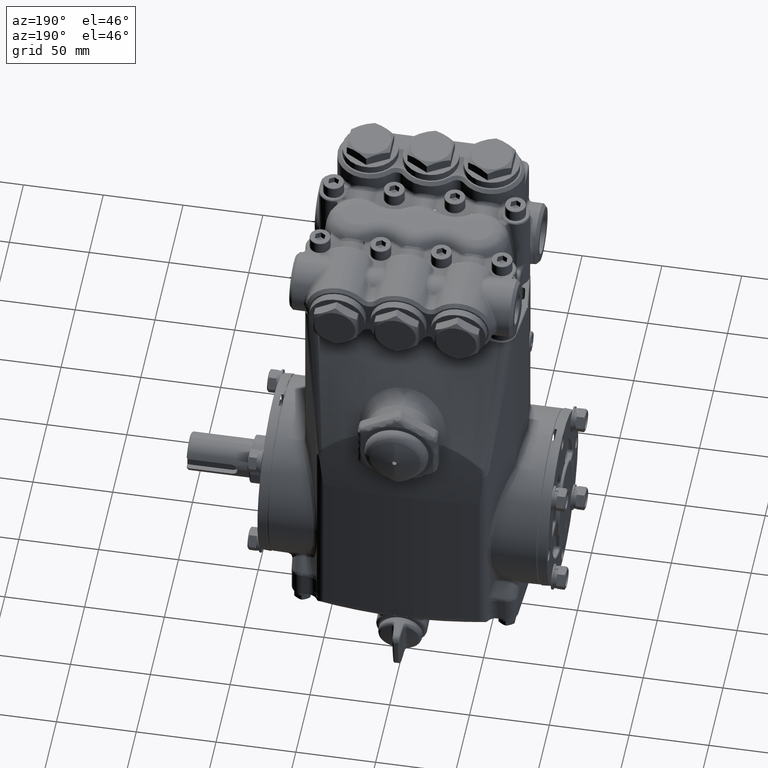
[diagram: clean part render]
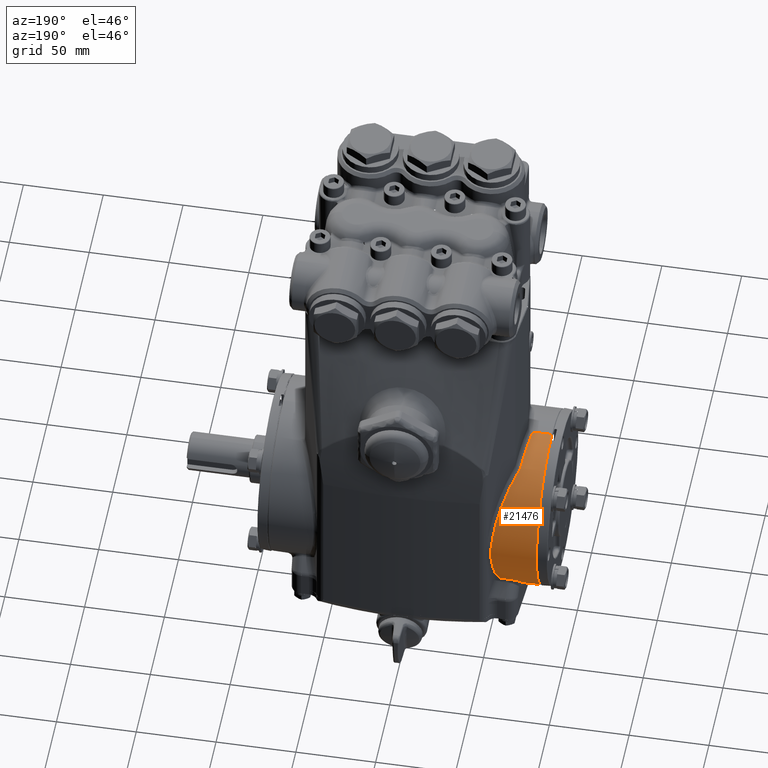
[diagram: same view with one face highlighted and labeled with its STEP entity id]
A machine part, auxiliary view. The second image highlights one B-rep face of the part: STEP entity #21476.
In plain terms, the highlighted cylindrical surface (partial cylindrical patch) has radius 55 mm, axis along (-1, -0, -0).
Its self-contained STEP definition (entity closure, byte-faithful):
#1728 = ORIENTED_EDGE ( 'NONE', *, *, #79761, .T. ) ;
#2947 = CARTESIAN_POINT ( 'NONE',  ( -2.186613352208861993, 2.157628379374275429, 0.1885892275417958008 ) ) ;
#3377 = EDGE_CURVE ( 'NONE', #10515, #93076, #52742, .T. ) ;
#3612 = CARTESIAN_POINT ( 'NONE',  ( -2.347859870804390070, 1.842123431487330043, -1.138139405278453919 ) ) ;
#4577 = CARTESIAN_POINT ( 'NONE',  ( -2.224920720426668552, 2.093148554814857842, 0.5545164605268523283 ) ) ;
#5248 = CYLINDRICAL_SURFACE ( 'NONE', #34027, 2.165354330708661568 ) ;
#5401 = CARTESIAN_POINT ( 'NONE',  ( -2.202600983985220306, 2.135186560717966309, -0.3721468128045957169 ) ) ;
#6176 = CARTESIAN_POINT ( 'NONE',  ( -2.818533017741007729, 1.746310629392774150, -1.280332060359319568 ) ) ;
#6796 = CARTESIAN_POINT ( 'NONE',  ( -2.903593194520122100, 1.652876374660746661, -1.398892119377336041 ) ) ;
#8334 = CARTESIAN_POINT ( 'NONE',  ( -3.000905191768266089, 0.01046765692728673057, -2.165329029426523277 ) ) ;
#8646 = CARTESIAN_POINT ( 'NONE',  ( -2.895476968579367760, 1.668070233648332623, -1.380739355267364132 ) ) ;
#9548 = CARTESIAN_POINT ( 'NONE',  ( -2.834916132250361986, 0.007256158854866113193, 2.165354330708664232 ) ) ;
#10515 = VERTEX_POINT ( 'NONE', #114445 ) ;
#12366 = CARTESIAN_POINT ( 'NONE',  ( -2.214111242110439193, 2.117192476782161936, -0.4637572061125144751 ) ) ;
#12558 =( BOUNDED_CURVE ( )  B_SPLINE_CURVE ( 3, ( #44749, #121321, #91264, #4577 ),
 .UNSPECIFIED., .F., .F. ) 
 B_SPLINE_CURVE_WITH_KNOTS ( ( 4, 4 ),
 ( 2.070085784874226231, 2.882621878166205853 ),
 .UNSPECIFIED. ) 
 CURVE ( )  GEOMETRIC_REPRESENTATION_ITEM ( )  RATIONAL_B_SPLINE_CURVE ( ( 1.000000000000000000, 0.9457346828002772821, 0.9457346828002772821, 1.000000000000000000 ) ) 
 REPRESENTATION_ITEM ( '' )  );
#12738 = CARTESIAN_POINT ( 'NONE',  ( -2.699836573358002312, 1.036775677710985333, 1.901014353345519270 ) ) ;
#12820 = DIRECTION ( 'NONE',  ( 1.000000000000000000, -0.000000000000000000, -0.000000000000000000 ) ) ;
#14285 = CARTESIAN_POINT ( 'NONE',  ( -2.374685763242076586, 1.829236654641229309, -1.158732504851491818 ) ) ;
#14850 = CARTESIAN_POINT ( 'NONE',  ( -2.214137029036238324, 2.117135117970423863, 0.4639737199988274163 ) ) ;
#14917 = CARTESIAN_POINT ( 'NONE',  ( -2.330330887586870237, 1.858680825696717331, -1.110948456377815363 ) ) ;
#15386 = EDGE_CURVE ( 'NONE', #38592, #10515, #94194, .T. ) ;
#15525 = CARTESIAN_POINT ( 'NONE',  ( -2.360136675470979828, 1.835108037747382737, -1.149413945969933071 ) ) ;
#16557 = CARTESIAN_POINT ( 'NONE',  ( -3.307086614166640182, 2.651794250122221246E-16, 2.165354330708661568 ) ) ;
#16906 = B_SPLINE_CURVE_WITH_KNOTS ( 'NONE', 3,
 ( #63906, #14917, #102215, #80874, #3612, #51978, #15525, #33124, #14285, #101581, #41908, #91534, #62664, #92173 ),
 .UNSPECIFIED., .F., .F.,
 ( 4, 2, 2, 2, 2, 2, 4 ),
 ( 0.000000000000000000, 0.0009293632568907302582, 0.001394044885336096200, 0.001858726513781462251, 0.002323408142226828302, 0.002788089770672194136, 0.003717453027562906288 ),
 .UNSPECIFIED. ) ;
#18087 = CARTESIAN_POINT ( 'NONE',  ( -2.875645456564244640, 1.696808674284081775, -1.345404253422435081 ) ) ;
#18388 = CARTESIAN_POINT ( 'NONE',  ( -2.834471511779911523, 0.01451231771058760812, 2.165317858263889228 ) ) ;
#18510 = CARTESIAN_POINT ( 'NONE',  ( -2.920714650841377935, 1.587600093807528978, -1.472509870819574740 ) ) ;
#18612 = EDGE_CURVE ( 'NONE', #54099, #80200, #122142, .T. ) ;
#18712 = CARTESIAN_POINT ( 'NONE',  ( -2.792530616634989471, 1.761970238058271576, -1.258688681146406863 ) ) ;
#18894 = VERTEX_POINT ( 'NONE', #105210 ) ;
#19025 = CARTESIAN_POINT ( 'NONE',  ( -3.001247000493426853, 0.003491088892603810574, -2.165354330708661568 ) ) ;
#19185 = CARTESIAN_POINT ( 'NONE',  ( -2.964687734594000812, 0.9588978268965991925, -1.984134134183584752 ) ) ;
#20750 = EDGE_CURVE ( 'NONE', #21798, #103197, #48703, .T. ) ;
#21476 = ADVANCED_FACE ( 'NONE', ( #98278 ), #5248, .T. ) ;
#21626 = EDGE_CURVE ( 'NONE', #68475, #18894, #117615, .T. ) ;
#21798 = VERTEX_POINT ( 'NONE', #109358 ) ;
#21804 = CARTESIAN_POINT ( 'NONE',  ( -2.180526785268474210, 2.165375858866640968, -0.02138746709008351038 ) ) ;
#22390 = ORIENTED_EDGE ( 'NONE', *, *, #18612, .T. ) ;
#23756 = CARTESIAN_POINT ( 'NONE',  ( 19685.03937007874265, 1.820616516430447085, -1.172226461746799009 ) ) ;
#25473 = EDGE_LOOP ( 'NONE', ( #93116, #67102, #108816, #51892, #66453, #74749, #41868, #33772, #22390, #39183, #121841, #38680, #41057, #1728, #119276 ) ) ;
#25853 = CARTESIAN_POINT ( 'NONE',  ( -2.996285488333642721, 0.1040549884975184580, -2.163356751746155382 ) ) ;
#26271 = CARTESIAN_POINT ( 'NONE',  ( -2.907126062173174486, 1.645029633680164860, -1.408113838877049329 ) ) ;
#26461 = CARTESIAN_POINT ( 'NONE',  ( -2.995616580941062423, 0.2435827851895652763, -2.152113865190802056 ) ) ;
#26888 = CARTESIAN_POINT ( 'NONE',  ( -2.557632326301072734, 1.820616516430408671, -1.172226461746761927 ) ) ;
#26984 = B_SPLINE_CURVE_WITH_KNOTS ( 'NONE', 3,
 ( #110632, #33383, #81130, #101237, #93657, #26461, #74203, #25853, #120629, #54118 ),
 .UNSPECIFIED., .F., .F.,
 ( 4, 2, 2, 2, 4 ),
 ( 0.000000000000000000, 0.003546287326658007465, 0.007092574653316014929, 0.01063886197997401979, 0.01418514930663202118 ),
 .UNSPECIFIED. ) ;
#27595 = VERTEX_POINT ( 'NONE', #41707 ) ;
#27810 = CARTESIAN_POINT ( 'NONE',  ( -2.834916132250326903, -8.553836053367910872E-13, 2.165354330708661568 ) ) ;
#28122 = CARTESIAN_POINT ( 'NONE',  ( -2.582376196092895704, 1.819240064059689299, -1.174372134108272236 ) ) ;
#29575 = EDGE_CURVE ( 'NONE', #27595, #21798, #52027, .T. ) ;
#30963 = CARTESIAN_POINT ( 'NONE',  ( -2.712053289720472993, 1.003180171440650970, 1.919059759503227269 ) ) ;
#31936 = DIRECTION ( 'NONE',  ( -1.000000000000000000, -0.000000000000000000, -0.000000000000000000 ) ) ;
#31985 = VECTOR ( 'NONE', #40178, 39.37007874015748143 ) ;
#32186 = CARTESIAN_POINT ( 'NONE',  ( -2.707236426691661535, 1.020315910558582173, 1.909991185221792120 ) ) ;
#32432 = CARTESIAN_POINT ( 'NONE',  ( -2.224920720426668552, 2.093148554814857842, 0.5545164605268523283 ) ) ;
#33124 = CARTESIAN_POINT ( 'NONE',  ( -2.369612889744431516, 1.831046827813259670, -1.155872589756385294 ) ) ;
#33383 = CARTESIAN_POINT ( 'NONE',  ( -2.995487386928054274, 0.5185418274592423771, -2.102870380195392297 ) ) ;
#33673 = CARTESIAN_POINT ( 'NONE',  ( -2.189920097867191995, 2.153294297498582033, -0.2329633583571052435 ) ) ;
#33772 = ORIENTED_EDGE ( 'NONE', *, *, #55758, .T. ) ;
#34027 = AXIS2_PLACEMENT_3D ( 'NONE', #51138, #52362, #61191 ) ;
#35192 = CARTESIAN_POINT ( 'NONE',  ( -2.714262431508347451, 0.9853388122601114407, 1.928177067225048225 ) ) ;
#35666 = CARTESIAN_POINT ( 'NONE',  ( -2.753963914065131302, 1.780296878712746667, -1.232619823086091637 ) ) ;
#38592 = VERTEX_POINT ( 'NONE', #60253 ) ;
#38622 = VECTOR ( 'NONE', #106156, 39.37007874015748143 ) ;
#38680 = ORIENTED_EDGE ( 'NONE', *, *, #29575, .T. ) ;
#39183 = ORIENTED_EDGE ( 'NONE', *, *, #49914, .T. ) ;
#39806 = EDGE_CURVE ( 'NONE', #38592, #106260, #104922, .T. ) ;
#40178 = DIRECTION ( 'NONE',  ( -1.000000000000000000, -0.000000000000000000, -0.000000000000000000 ) ) ;
#40197 = CARTESIAN_POINT ( 'NONE',  ( -2.282229834916867706, 1.965673774210779490, -0.9296893196579598673 ) ) ;
#41057 = ORIENTED_EDGE ( 'NONE', *, *, #20750, .T. ) ;
#41527 = CARTESIAN_POINT ( 'NONE',  ( -2.224920720426668996, 2.093148554814857842, -0.5545164605268522173 ) ) ;
#41707 = CARTESIAN_POINT ( 'NONE',  ( -2.432232454864653448, 1.820616516430446419, -1.172226461746799897 ) ) ;
#41868 = ORIENTED_EDGE ( 'NONE', *, *, #47637, .T. ) ;
#41908 = CARTESIAN_POINT ( 'NONE',  ( -2.390773553364281323, 1.824823179282988539, -1.165668736654657867 ) ) ;
#44469 = CARTESIAN_POINT ( 'NONE',  ( -2.783320116348022122, 1.766820788075095461, -1.251865423870408778 ) ) ;
#44749 = CARTESIAN_POINT ( 'NONE',  ( -2.699836573358002312, 1.036775677710985333, 1.901014353345519270 ) ) ;
#47247 = CARTESIAN_POINT ( 'NONE',  ( -2.833573044147181808, 0.02176847656630910219, 2.165244907844546152 ) ) ;
#47431 = VERTEX_POINT ( 'NONE', #92000 ) ;
#47637 = EDGE_CURVE ( 'NONE', #93076, #90753, #55881, .T. ) ;
#48703 = B_SPLINE_CURVE_WITH_KNOTS ( 'NONE', 3,
 ( #84680, #26888, #28122, #66464, #57015, #111658, #114115, #94713, #64598, #35666, #92869, #44469, #18712, #112906, #6176, #102899, #104130, #65218, #18087, #121051, #8646, #6796, #26271, #112293, #104752, #94102 ),
 .UNSPECIFIED., .F., .F.,
 ( 4, 2, 2, 2, 2, 2, 2, 2, 2, 2, 2, 2, 4 ),
 ( 0.000000000000000000, 0.001891821109857257316, 0.002837731664785884782, 0.003783642219714512030, 0.005675463329571802523, 0.006621373884500461431, 0.007567284439429121205, 0.008513194994357780113, 0.009459105549286438153, 0.01135092665914376811, 0.01229683721407244003, 0.01324274776900111195, 0.01513456887885848180 ),
 .UNSPECIFIED. ) ;
#49914 = EDGE_CURVE ( 'NONE', #80200, #107800, #63198, .T. ) ;
#51129 = DIRECTION ( 'NONE',  ( 0.000000000000000000, 0.000000000000000000, -1.000000000000000000 ) ) ;
#51138 = CARTESIAN_POINT ( 'NONE',  ( 19685.03937007874265, 0.000000000000000000, 0.000000000000000000 ) ) ;
#51892 = ORIENTED_EDGE ( 'NONE', *, *, #39806, .F. ) ;
#51911 = CARTESIAN_POINT ( 'NONE',  ( -2.186450764309912476, 2.157841920206465591, -0.1862736558526659481 ) ) ;
#51978 = CARTESIAN_POINT ( 'NONE',  ( -2.355791910466821015, 1.837328447188444569, -1.145863962184987095 ) ) ;
#52027 = LINE ( 'NONE', #23756, #100571 ) ;
#52362 = DIRECTION ( 'NONE',  ( -1.000000000000000000, -0.000000000000000000, -0.000000000000000000 ) ) ;
#52525 = CARTESIAN_POINT ( 'NONE',  ( -2.202693561820952439, 2.135036624589259802, 0.3728106239869881100 ) ) ;
#52742 =( BOUNDED_CURVE ( )  B_SPLINE_CURVE ( 3, ( #121199, #85437, #111188, #35192 ),
 .UNSPECIFIED., .F., .T. ) 
 B_SPLINE_CURVE_WITH_KNOTS ( ( 4, 4 ),
 ( 1.580849574406080205, 2.043221746822086349 ),
 .UNSPECIFIED. ) 
 CURVE ( )  GEOMETRIC_REPRESENTATION_ITEM ( )  RATIONAL_B_SPLINE_CURVE ( ( 1.000000000000000000, 0.9822635394635154116, 0.9822635394635154116, 1.000000000000000000 ) ) 
 REPRESENTATION_ITEM ( '' )  );
#54099 = VERTEX_POINT ( 'NONE', #109772 ) ;
#54118 = CARTESIAN_POINT ( 'NONE',  ( -3.000905191768266089, 0.01046765692728673057, -2.165329029426523277 ) ) ;
#55758 = EDGE_CURVE ( 'NONE', #90753, #54099, #12558, .T. ) ;
#55881 = B_SPLINE_CURVE_WITH_KNOTS ( 'NONE', 3,
 ( #60488, #30963, #32186, #12738 ),
 .UNSPECIFIED., .F., .F.,
 ( 4, 4 ),
 ( 3.469446951953614189E-18, 0.001522235697223477992 ),
 .UNSPECIFIED. ) ;
#57015 = CARTESIAN_POINT ( 'NONE',  ( -2.630949183802644420, 1.813465316359295310, -1.183265352077683241 ) ) ;
#60253 = CARTESIAN_POINT ( 'NONE',  ( -2.834916132250326903, -8.553836053367910872E-13, 2.165354330708661568 ) ) ;
#60488 = CARTESIAN_POINT ( 'NONE',  ( -2.714262431508347451, 0.9853388122601114407, 1.928177067225048225 ) ) ;
#60865 = EDGE_CURVE ( 'NONE', #47431, #106260, #92014, .T. ) ;
#61191 = DIRECTION ( 'NONE',  ( 0.000000000000000000, 0.000000000000000000, 1.000000000000000000 ) ) ;
#61607 = CARTESIAN_POINT ( 'NONE',  ( -2.992327056910538907, 0.5637264376050651338, -2.090686939994570004 ) ) ;
#62664 = CARTESIAN_POINT ( 'NONE',  ( -2.420029408679309491, 1.820616516430447751, -1.172226461746846082 ) ) ;
#63198 =( BOUNDED_CURVE ( )  B_SPLINE_CURVE ( 3, ( #67921, #116829, #40197, #116212 ),
 .UNSPECIFIED., .F., .T. ) 
 B_SPLINE_CURVE_WITH_KNOTS ( ( 4, 4 ),
 ( 3.400563429013380379, 3.674831595706583798 ),
 .UNSPECIFIED. ) 
 CURVE ( )  GEOMETRIC_REPRESENTATION_ITEM ( )  RATIONAL_B_SPLINE_CURVE ( ( 1.000000000000000000, 0.9937412320302076996, 0.9937412320302076996, 1.000000000000000000 ) ) 
 REPRESENTATION_ITEM ( '' )  );
#63906 = CARTESIAN_POINT ( 'NONE',  ( -2.327612382700216642, 1.864727696549315805, -1.100704317807756016 ) ) ;
#63962 = AXIS2_PLACEMENT_3D ( 'NONE', #81887, #12820, #51129 ) ;
#64598 = CARTESIAN_POINT ( 'NONE',  ( -2.722920638537827731, 1.792222520854177104, -1.215275574371438516 ) ) ;
#65115 = EDGE_CURVE ( 'NONE', #107800, #27595, #16906, .T. ) ;
#65218 = CARTESIAN_POINT ( 'NONE',  ( -2.863472108935826377, 1.710160163005832956, -1.328358890287677729 ) ) ;
#66453 = ORIENTED_EDGE ( 'NONE', *, *, #15386, .T. ) ;
#66464 = CARTESIAN_POINT ( 'NONE',  ( -2.618882594685502774, 1.815162649067177503, -1.180656669223874244 ) ) ;
#67102 = ORIENTED_EDGE ( 'NONE', *, *, #82902, .T. ) ;
#67921 = CARTESIAN_POINT ( 'NONE',  ( -2.224920720426668996, 2.093148554814857842, -0.5545164605268522173 ) ) ;
#68475 = VERTEX_POINT ( 'NONE', #80605 ) ;
#69533 = CARTESIAN_POINT ( 'NONE',  ( -2.180581225541741830, 2.165308281435589066, 0.04901070734122809497 ) ) ;
#72576 =( BOUNDED_CURVE ( )  B_SPLINE_CURVE ( 3, ( #86389, #115826, #19185, #95192 ),
 .UNSPECIFIED., .F., .F. ) 
 B_SPLINE_CURVE_WITH_KNOTS ( ( 4, 4 ),
 ( 3.889398702551730924, 4.449015564267806866 ),
 .UNSPECIFIED. ) 
 CURVE ( )  GEOMETRIC_REPRESENTATION_ITEM ( )  RATIONAL_B_SPLINE_CURVE ( ( 1.000000000000000000, 0.9740722412601059421, 0.9740722412601059421, 1.000000000000000000 ) ) 
 REPRESENTATION_ITEM ( '' )  );
#72828 = CARTESIAN_POINT ( 'NONE',  ( -2.327612382700216642, 1.864727696549315805, -1.100704317807756016 ) ) ;
#74203 = CARTESIAN_POINT ( 'NONE',  ( -2.995192722002654406, 0.1972203405201242987, -2.156859757434875569 ) ) ;
#74749 = ORIENTED_EDGE ( 'NONE', *, *, #3377, .T. ) ;
#76191 = CARTESIAN_POINT ( 'NONE',  ( -3.001247000493425965, -5.474055705097304527E-14, -2.165354330708661568 ) ) ;
#78136 = VERTEX_POINT ( 'NONE', #61607 ) ;
#78959 = CARTESIAN_POINT ( 'NONE',  ( -2.182914079590751122, 2.162387231284902622, -0.1157406669298135377 ) ) ;
#79761 = EDGE_CURVE ( 'NONE', #103197, #78136, #72576, .T. ) ;
#80200 = VERTEX_POINT ( 'NONE', #41527 ) ;
#80605 = CARTESIAN_POINT ( 'NONE',  ( -3.000905191768266089, 0.01046765692728673057, -2.165329029426523277 ) ) ;
#80874 = CARTESIAN_POINT ( 'NONE',  ( -2.344246016133761046, 1.844723699014530816, -1.133922719474339980 ) ) ;
#81130 = CARTESIAN_POINT ( 'NONE',  ( -2.996615589479274977, 0.4731062516763475112, -2.113551596670201427 ) ) ;
#81419 = CARTESIAN_POINT ( 'NONE',  ( -2.180817177939173401, 2.165017101369969499, -0.04491568208714365185 ) ) ;
#81495 = CARTESIAN_POINT ( 'NONE',  ( -2.699836573358002312, 1.036775677710985333, 1.901014353345519270 ) ) ;
#81887 = CARTESIAN_POINT ( 'NONE',  ( -3.307086614166640182, 0.000000000000000000, 0.000000000000000000 ) ) ;
#82365 = CARTESIAN_POINT ( 'NONE',  ( -2.714262431508347451, 0.9853388122601114407, 1.928177067225048225 ) ) ;
#82902 = EDGE_CURVE ( 'NONE', #18894, #47431, #116191, .T. ) ;
#84680 = CARTESIAN_POINT ( 'NONE',  ( -2.532464889193351887, 1.820616516430446863, -1.172226461746799009 ) ) ;
#85437 = CARTESIAN_POINT ( 'NONE',  ( -2.791879429211051811, 0.3584923408687987201, 2.161859625411683528 ) ) ;
#86389 = CARTESIAN_POINT ( 'NONE',  ( -2.920714650841377935, 1.587600093807528978, -1.472509870819574740 ) ) ;
#88140 = EDGE_CURVE ( 'NONE', #78136, #68475, #26984, .T. ) ;
#90235 = CARTESIAN_POINT ( 'NONE',  ( -2.190071999432462224, 2.153086051259655243, 0.2348026329366685871 ) ) ;
#90753 = VERTEX_POINT ( 'NONE', #81495 ) ;
#91264 = CARTESIAN_POINT ( 'NONE',  ( -2.294367569176432475, 1.938675363477264213, 1.137610670027403570 ) ) ;
#91534 = CARTESIAN_POINT ( 'NONE',  ( -2.408079295826049737, 1.821645022111501921, -1.170634117865167800 ) ) ;
#92000 = CARTESIAN_POINT ( 'NONE',  ( -3.307086614166640182, 0.000000000000000000, -2.165354330708661568 ) ) ;
#92014 = CIRCLE ( 'NONE', #63962, 2.165354330708661568 ) ;
#92173 = CARTESIAN_POINT ( 'NONE',  ( -2.432232454864653448, 1.820616516430446419, -1.172226461746799897 ) ) ;
#92869 = CARTESIAN_POINT ( 'NONE',  ( -2.764059797206227298, 1.775976632164363300, -1.238842095935893672 ) ) ;
#93076 = VERTEX_POINT ( 'NONE', #82365 ) ;
#93116 = ORIENTED_EDGE ( 'NONE', *, *, #21626, .T. ) ;
#93657 = CARTESIAN_POINT ( 'NONE',  ( -2.996620088869630827, 0.3358538298913014142, -2.139656249712679870 ) ) ;
#94102 = CARTESIAN_POINT ( 'NONE',  ( -2.920714650841377935, 1.587600093807528978, -1.472509870819574740 ) ) ;
#94194 = B_SPLINE_CURVE_WITH_KNOTS ( 'NONE', 3,
 ( #27810, #9548, #18388, #47247 ),
 .UNSPECIFIED., .F., .F.,
 ( 4, 4 ),
 ( 0.0005529193047624394834, 0.001105838609568417490 ),
 .UNSPECIFIED. ) ;
#94713 = CARTESIAN_POINT ( 'NONE',  ( -2.701115141882145299, 1.798870862651447133, -1.205370664415323700 ) ) ;
#95192 = CARTESIAN_POINT ( 'NONE',  ( -2.992327056910538907, 0.5637264376050651338, -2.090686939994570004 ) ) ;
#96150 = CARTESIAN_POINT ( 'NONE',  ( 19685.03937007874265, 2.651794250122221246E-16, -2.165354330708661568 ) ) ;
#96880 = CARTESIAN_POINT ( 'NONE',  ( -3.001132935298741256, 0.006984045161048439698, -2.165345869940062062 ) ) ;
#98278 = FACE_OUTER_BOUND ( 'NONE', #25473, .T. ) ;
#100571 = VECTOR ( 'NONE', #31936, 39.37007874015748143 ) ;
#101237 = CARTESIAN_POINT ( 'NONE',  ( -2.997196904585581745, 0.3817623974804327247, -2.131944499519720981 ) ) ;
#101581 = CARTESIAN_POINT ( 'NONE',  ( -2.385249461896747025, 1.826132136985539889, -1.163618998964428775 ) ) ;
#102215 = CARTESIAN_POINT ( 'NONE',  ( -2.334813571937218946, 1.852837202116557558, -1.120652135000211214 ) ) ;
#102899 = CARTESIAN_POINT ( 'NONE',  ( -2.834510793166090892, 1.734923225546766368, -1.295720803480591155 ) ) ;
#103197 = VERTEX_POINT ( 'NONE', #18510 ) ;
#104130 = CARTESIAN_POINT ( 'NONE',  ( -2.842123480178768258, 1.728912408571944503, -1.303736053716292531 ) ) ;
#104752 = CARTESIAN_POINT ( 'NONE',  ( -2.919519453647200891, 1.604688346922567899, -1.454086013169413993 ) ) ;
#104922 = LINE ( 'NONE', #116160, #38622 ) ;
#105210 = CARTESIAN_POINT ( 'NONE',  ( -3.001247000493425965, -5.474055705097304527E-14, -2.165354330708661568 ) ) ;
#106156 = DIRECTION ( 'NONE',  ( -1.000000000000000000, -0.000000000000000000, -0.000000000000000000 ) ) ;
#106260 = VERTEX_POINT ( 'NONE', #16557 ) ;
#107800 = VERTEX_POINT ( 'NONE', #72828 ) ;
#108441 = CARTESIAN_POINT ( 'NONE',  ( -2.224920720426668996, 2.093148554814857842, -0.5545164605268522173 ) ) ;
#108816 = ORIENTED_EDGE ( 'NONE', *, *, #60865, .T. ) ;
#109061 = CARTESIAN_POINT ( 'NONE',  ( -2.181865193312993334, 2.163739559798199430, 0.09569345636149928502 ) ) ;
#109358 = CARTESIAN_POINT ( 'NONE',  ( -2.532464889193351887, 1.820616516430446863, -1.172226461746799009 ) ) ;
#109655 = CARTESIAN_POINT ( 'NONE',  ( -2.182010245614104615, 2.163523631875809095, -0.09209756802802643305 ) ) ;
#109772 = CARTESIAN_POINT ( 'NONE',  ( -2.224920720426668552, 2.093148554814857842, 0.5545164605268523283 ) ) ;
#110632 = CARTESIAN_POINT ( 'NONE',  ( -2.992327056910538907, 0.5637264376050651338, -2.090686939994570004 ) ) ;
#111188 = CARTESIAN_POINT ( 'NONE',  ( -2.751391105441370222, 0.6854820936121004404, 2.081410122437167054 ) ) ;
#111658 = CARTESIAN_POINT ( 'NONE',  ( -2.654874561816855660, 1.809369689380805113, -1.189518673336169563 ) ) ;
#112293 = CARTESIAN_POINT ( 'NONE',  ( -2.915934412661236319, 1.621165426257023201, -1.435678530815410969 ) ) ;
#112906 = CARTESIAN_POINT ( 'NONE',  ( -2.810137086962422259, 1.751715151741702448, -1.272921970510207723 ) ) ;
#114115 = CARTESIAN_POINT ( 'NONE',  ( -2.666696451043287563, 1.806973173080999251, -1.193160169334844589 ) ) ;
#114445 = CARTESIAN_POINT ( 'NONE',  ( -2.833573044147181808, 0.02176847656630910219, 2.165244907844546152 ) ) ;
#115826 = CARTESIAN_POINT ( 'NONE',  ( -2.940181541919657082, 1.309273501592581157, -1.772590252395337407 ) ) ;
#116160 = CARTESIAN_POINT ( 'NONE',  ( 19685.03937007874265, 0.000000000000000000, 2.165354330708661568 ) ) ;
#116191 = LINE ( 'NONE', #96150, #31985 ) ;
#116212 = CARTESIAN_POINT ( 'NONE',  ( -2.327612382700216642, 1.864727696549315805, -1.100704317807756016 ) ) ;
#116829 = CARTESIAN_POINT ( 'NONE',  ( -2.247783690399701495, 2.042293606048640964, -0.7464800361690671071 ) ) ;
#117615 = B_SPLINE_CURVE_WITH_KNOTS ( 'NONE', 3,
 ( #8334, #96880, #19025, #76191 ),
 .UNSPECIFIED., .F., .F.,
 ( 4, 4 ),
 ( 2.547875105340935420E-18, 0.0002660209736205815679 ),
 .UNSPECIFIED. ) ;
#119276 = ORIENTED_EDGE ( 'NONE', *, *, #88140, .T. ) ;
#120629 = CARTESIAN_POINT ( 'NONE',  ( -2.997849561794700968, 0.05720719989911267345, -2.165103080624237286 ) ) ;
#121051 = CARTESIAN_POINT ( 'NONE',  ( -2.890897829059087876, 1.675425255221527410, -1.371800939592950463 ) ) ;
#121199 = CARTESIAN_POINT ( 'NONE',  ( -2.833573044147181808, 0.02176847656630910219, 2.165244907844546152 ) ) ;
#121321 = CARTESIAN_POINT ( 'NONE',  ( -2.461756253539471029, 1.566346528792579962, 1.612196871741579773 ) ) ;
#121841 = ORIENTED_EDGE ( 'NONE', *, *, #65115, .T. ) ;
#122142 = B_SPLINE_CURVE_WITH_KNOTS ( 'NONE', 3,
 ( #32432, #14850, #52525, #90235, #2947, #109061, #69533, #21804, #81419, #109655, #78959, #51911, #33673, #5401, #12366, #108441 ),
 .UNSPECIFIED., .F., .F.,
 ( 4, 2, 2, 2, 2, 2, 2, 4 ),
 ( 0.000000000000000000, 0.007095812614449549353, 0.01064371892167432013, 0.01419162522889909350, 0.01596557838251147499, 0.01773953153612386341, 0.02128743784334863332, 0.02838325045779818007 ),
 .UNSPECIFIED. ) ;